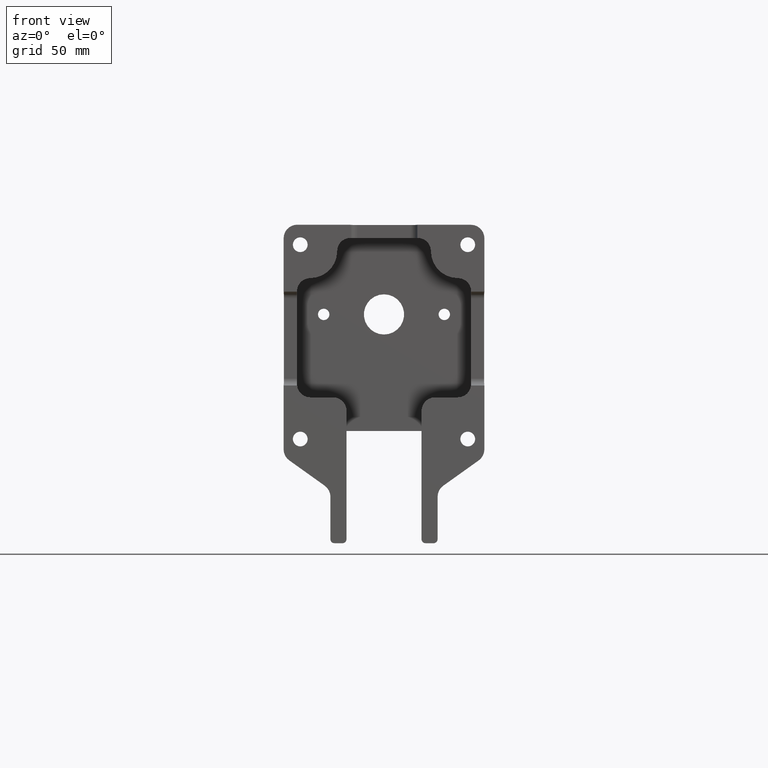
[diagram: clean part render]
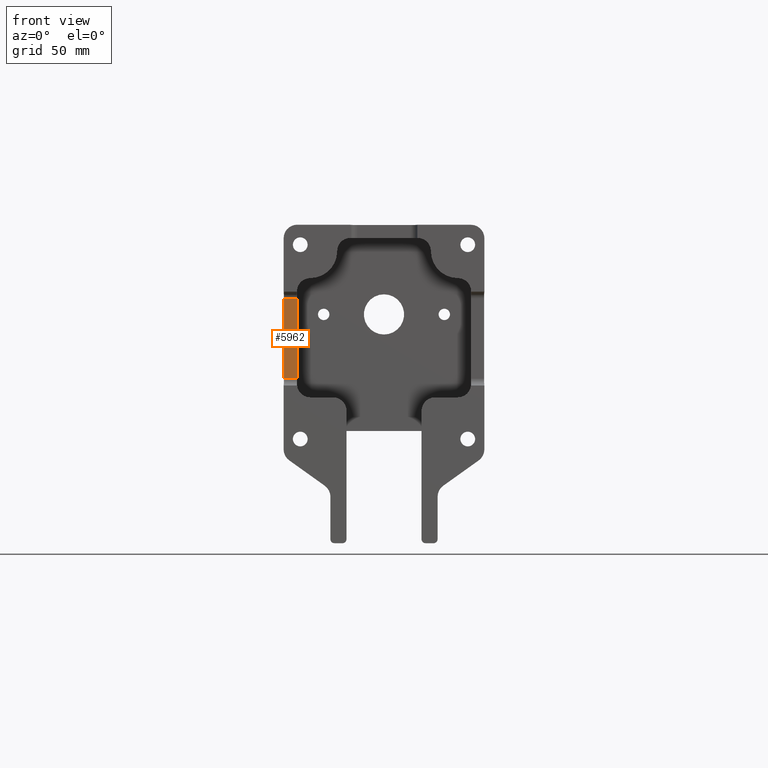
[diagram: same view with one face highlighted and labeled with its STEP entity id]
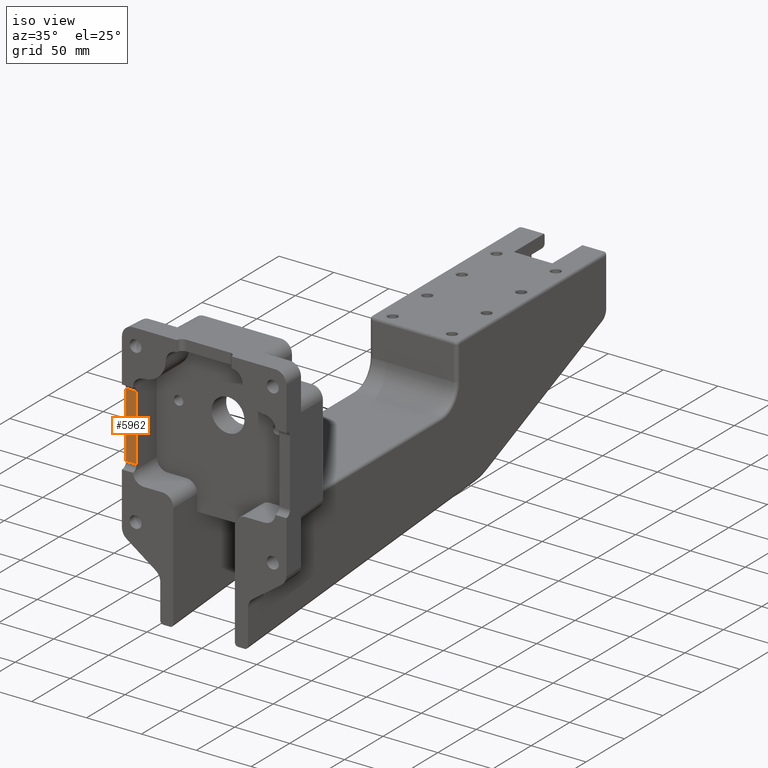
[diagram: same view with one face highlighted and labeled with its STEP entity id]
A machine part, front view. The second image highlights one B-rep face of the part: STEP entity #5962.
A second angle (iso view) of the same face is appended — the face is thin or edge-on in the first view.
In plain terms, the highlighted planar face has unit normal (0, -1, 0).
Its self-contained STEP definition (entity closure, byte-faithful):
#394 = DIRECTION ( 'NONE',  ( -2.261574135763036500E-017, -9.251858538542965900E-016, -1.000000000000000000 ) ) ;
#535 = DIRECTION ( 'NONE',  ( 0.0000000000000000000, -1.000000000000000000, 9.251858538542963900E-016 ) ) ;
#1603 = CARTESIAN_POINT ( 'NONE',  ( -74.99999999999992900, 7.999999999999937800, -115.0000000000001000 ) ) ;
#1643 = VECTOR ( 'NONE', #10036, 1000.000000000000000 ) ;
#2103 = EDGE_CURVE ( 'NONE', #5411, #9581, #4384, .T. ) ;
#2209 = AXIS2_PLACEMENT_3D ( 'NONE', #6775, #535, #7835 ) ;
#2339 = ORIENTED_EDGE ( 'NONE', *, *, #11637, .T. ) ;
#2419 = ORIENTED_EDGE ( 'NONE', *, *, #5356, .T. ) ;
#3591 = VERTEX_POINT ( 'NONE', #3990 ) ;
#3778 = CARTESIAN_POINT ( 'NONE',  ( -65.00000000000000000, 7.999999999999992900, -55.00000000000005000 ) ) ;
#3990 = CARTESIAN_POINT ( 'NONE',  ( -74.72063384406594400, 7.999999999999937800, -115.0000000000001000 ) ) ;
#4079 = EDGE_CURVE ( 'NONE', #7477, #5411, #11086, .T. ) ;
#4384 = LINE ( 'NONE', #4800, #1643 ) ;
#4800 = CARTESIAN_POINT ( 'NONE',  ( -65.00000000000000000, 7.999999999999992900, -55.00000000000005000 ) ) ;
#5356 = EDGE_CURVE ( 'NONE', #3591, #9581, #7597, .T. ) ;
#5411 = VERTEX_POINT ( 'NONE', #3778 ) ;
#5962 = ADVANCED_FACE ( 'NONE', ( #8530 ), #8793, .T. ) ;
#6775 = CARTESIAN_POINT ( 'NONE',  ( -74.99999999999992900, 7.999999999999992900, -55.00000000000005000 ) ) ;
#7477 = VERTEX_POINT ( 'NONE', #9758 ) ;
#7597 = LINE ( 'NONE', #1603, #10344 ) ;
#7696 = CARTESIAN_POINT ( 'NONE',  ( -74.72063384406594400, 8.000000000000044400, 1.036144975589545600E-013 ) ) ;
#7833 = EDGE_LOOP ( 'NONE', ( #11476, #9132, #2339, #2419 ) ) ;
#7835 = DIRECTION ( 'NONE',  ( 0.0000000000000000000, -9.251858538542963900E-016, -1.000000000000000000 ) ) ;
#7949 = VECTOR ( 'NONE', #394, 1000.000000000000000 ) ;
#7995 = VECTOR ( 'NONE', #12452, 1000.000000000000000 ) ;
#8262 = LINE ( 'NONE', #7696, #7949 ) ;
#8530 = FACE_OUTER_BOUND ( 'NONE', #7833, .T. ) ;
#8793 = PLANE ( 'NONE',  #2209 ) ;
#9132 = ORIENTED_EDGE ( 'NONE', *, *, #4079, .F. ) ;
#9313 = CARTESIAN_POINT ( 'NONE',  ( -74.99999999999992900, 7.999999999999992900, -55.00000000000005000 ) ) ;
#9581 = VERTEX_POINT ( 'NONE', #11083 ) ;
#9758 = CARTESIAN_POINT ( 'NONE',  ( -74.72063384406594400, 7.999999999999992900, -55.00000000000005000 ) ) ;
#9956 = DIRECTION ( 'NONE',  ( 1.000000000000000000, 0.0000000000000000000, 0.0000000000000000000 ) ) ;
#10036 = DIRECTION ( 'NONE',  ( 2.011273595335431300E-016, -9.251858538542963900E-016, -1.000000000000000000 ) ) ;
#10344 = VECTOR ( 'NONE', #9956, 1000.000000000000000 ) ;
#11083 = CARTESIAN_POINT ( 'NONE',  ( -64.99999999999998600, 7.999999999999937800, -115.0000000000001000 ) ) ;
#11086 = LINE ( 'NONE', #9313, #7995 ) ;
#11476 = ORIENTED_EDGE ( 'NONE', *, *, #2103, .F. ) ;
#11637 = EDGE_CURVE ( 'NONE', #7477, #3591, #8262, .T. ) ;
#12452 = DIRECTION ( 'NONE',  ( 1.000000000000000000, 0.0000000000000000000, 0.0000000000000000000 ) ) ;